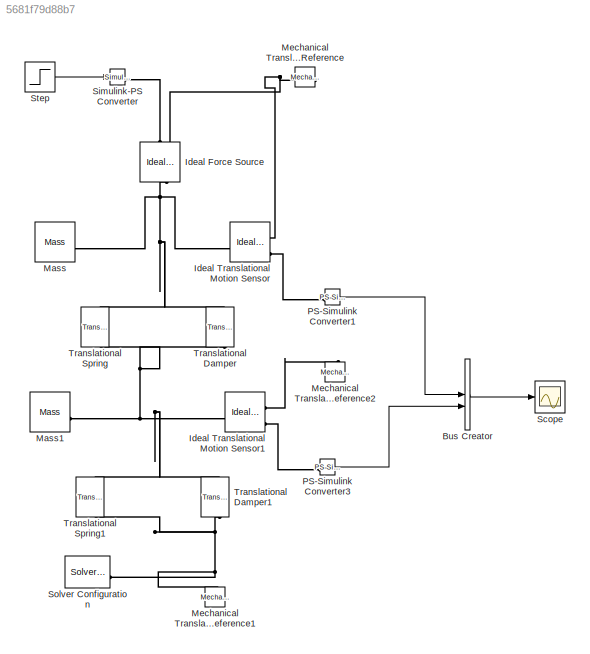
MODEL slx_5681f79d88b7
KIND model
CONFIG AbsTol = auto
CONFIG EnableMultiTasking = off
CONFIG FixedStep = auto
CONFIG MaxStep = 0.2
CONFIG MinStep = auto
CONFIG RelTol = 1e-3
CONFIG SampleTimeConstraint = Unconstrained
CONFIG SolverName = ode23t
CONFIG StartTime = 0.0
CONFIG StopTime = 4.5
BLOCK [BusCreator] Bus Creator
  DisplayOption = bar
  InheritFromInputs = on
  Inputs = 2
BLOCK [Reference] Ideal Force Source  REF=fl_lib/Mechanical/Mechanical Sources/Ideal Force Source
  NameLocation = left
  SourceBlock = fl_lib/Mechanical/Mechanical Sources/Ideal Force Source
  SourceType = Ideal Force Source
BLOCK [Reference] Ideal Translational Motion Sensor  REF=fl_lib/Mechanical/Mechanical Sensors/Ideal Translational
Motion Sensor
  SourceBlock = fl_lib/Mechanical/Mechanical Sensors/Ideal Translational\nMotion Sensor
  SourceType = Ideal Translational\nMotion Sensor
BLOCK [Reference] Ideal Translational Motion Sensor1  REF=fl_lib/Mechanical/Mechanical Sensors/Ideal Translational
Motion Sensor
  SourceBlock = fl_lib/Mechanical/Mechanical Sensors/Ideal Translational\nMotion Sensor
  SourceType = Ideal Translational\nMotion Sensor
BLOCK [Reference] Mass  REF=fl_lib/Mechanical/Translational
Elements/Mass
  SourceBlock = fl_lib/Mechanical/Translational\nElements/Mass
  SourceType = Mass
BLOCK [Reference] Mass1  REF=fl_lib/Mechanical/Translational
Elements/Mass
  SourceBlock = fl_lib/Mechanical/Translational\nElements/Mass
  SourceType = Mass
BLOCK [Reference] Mechanical Translational Reference  REF=fl_lib/Mechanical/Translational
Elements/Mechanical
Translational
Reference
  NameLocation = top
  SourceBlock = fl_lib/Mechanical/Translational\nElements/Mechanical\nTranslational\nReference
  SourceType = Mechanical\nTranslational\nReference
BLOCK [Reference] Mechanical Translational Reference1  REF=fl_lib/Mechanical/Translational
Elements/Mechanical
Translational
Reference
  NameLocation = right
  SourceBlock = fl_lib/Mechanical/Translational\nElements/Mechanical\nTranslational\nReference
  SourceType = Mechanical\nTranslational\nReference
BLOCK [Reference] Mechanical Translational Reference2  REF=fl_lib/Mechanical/Translational
Elements/Mechanical
Translational
Reference
  NameLocation = right
  SourceBlock = fl_lib/Mechanical/Translational\nElements/Mechanical\nTranslational\nReference
  SourceType = Mechanical\nTranslational\nReference
BLOCK [Reference] PS-Simulink Converter1  REF=nesl_utility/PS-Simulink
Converter
  SourceBlock = nesl_utility/PS-Simulink\nConverter
  SourceType = PS-Simulink\nConverter
BLOCK [Reference] PS-Simulink Converter3  REF=nesl_utility/PS-Simulink
Converter
  SourceBlock = nesl_utility/PS-Simulink\nConverter
  SourceType = PS-Simulink\nConverter
BLOCK [Scope] Scope
  Floating = off
  NumInputPorts = 1
  ScopeSpecificationString = Simulink.scopes.TimeScopeBlockCfg('CurrentConfiguration', extmgr.ConfigurationSet(extmgr.Configuration('Core','General UI',true,'FigureColor',[1 1 1]),extmgr.Configuration('Core','Source UI',true),extmgr.Configuration('Sources','WiredSimulink',true,'DataLoggingVariableName','ScopeData1'),extmgr.Configuration('Visuals','Time Domain',true,'SerializedDisplays',{struct('MinYLimReal','0.02119','MaxYLim...<+1804ch>
BLOCK [Reference] Simulink-PS Converter  REF=nesl_utility/Simulink-PS
Converter
  SourceBlock = nesl_utility/Simulink-PS\nConverter
  SourceType = Simulink-PS\nConverter
BLOCK [Reference] Solver Configuration  REF=nesl_utility/Solver
Configuration
  SourceBlock = nesl_utility/Solver\nConfiguration
  SourceType = Solver\nConfiguration
BLOCK [Step] Step
  After = y
  SampleTime = 0
  Time = 0.2
BLOCK [Reference] Translational Damper  REF=fl_lib/Mechanical/Translational
Elements/Translational Damper
  NameLocation = left
  SourceBlock = fl_lib/Mechanical/Translational\nElements/Translational Damper
  SourceType = Translational Damper
BLOCK [Reference] Translational Damper1  REF=fl_lib/Mechanical/Translational
Elements/Translational Damper
  NameLocation = left
  SourceBlock = fl_lib/Mechanical/Translational\nElements/Translational Damper
  SourceType = Translational Damper
BLOCK [Reference] Translational Spring  REF=fl_lib/Mechanical/Translational
Elements/Translational Spring
  NameLocation = left
  SourceBlock = fl_lib/Mechanical/Translational\nElements/Translational Spring
  SourceType = Translational Spring
BLOCK [Reference] Translational Spring1  REF=fl_lib/Mechanical/Translational
Elements/Translational Spring
  NameLocation = left
  SourceBlock = fl_lib/Mechanical/Translational\nElements/Translational Spring
  SourceType = Translational Spring
LINE Bus Creator:1 -> Scope:1
LINE PS-Simulink Converter1:1 -> Bus Creator:1
LINE PS-Simulink Converter3:1 -> Bus Creator:2
LINE Step:1 -> Simulink-PS Converter:1
PNET net1: Ideal Force Source:LConn1 -- Ideal Translational Motion Sensor:LConn1 -- Mass:LConn1 -- Translational Damper:LConn1 -- Translational Spring:LConn1
PLINE Ideal Force Source:RConn1 -- Simulink-PS Converter:RConn1
PNET net2: Ideal Force Source:RConn2 -- Ideal Translational Motion Sensor:RConn1 -- Mechanical Translational Reference:LConn1
PNET net3: Ideal Translational Motion Sensor1:LConn1 -- Mass1:LConn1 -- Translational Damper1:LConn1 -- Translational Damper:RConn1 -- Translational Spring1:LConn1 -- Translational Spring:RConn1
PLINE Ideal Translational Motion Sensor1:RConn1 -- Mechanical Translational Reference2:LConn1
PLINE Ideal Translational Motion Sensor1:RConn3 -- PS-Simulink Converter3:LConn1
PLINE Ideal Translational Motion Sensor:RConn3 -- PS-Simulink Converter1:LConn1
PNET net4: Mechanical Translational Reference1:LConn1 -- Solver Configuration:RConn1 -- Translational Damper1:RConn1 -- Translational Spring1:RConn1
note: PNET lines group multi-terminal physical nets as a canonical sorted terminal list (undirected conserving connections); 2-terminal nets keep the pairwise PLINE form
